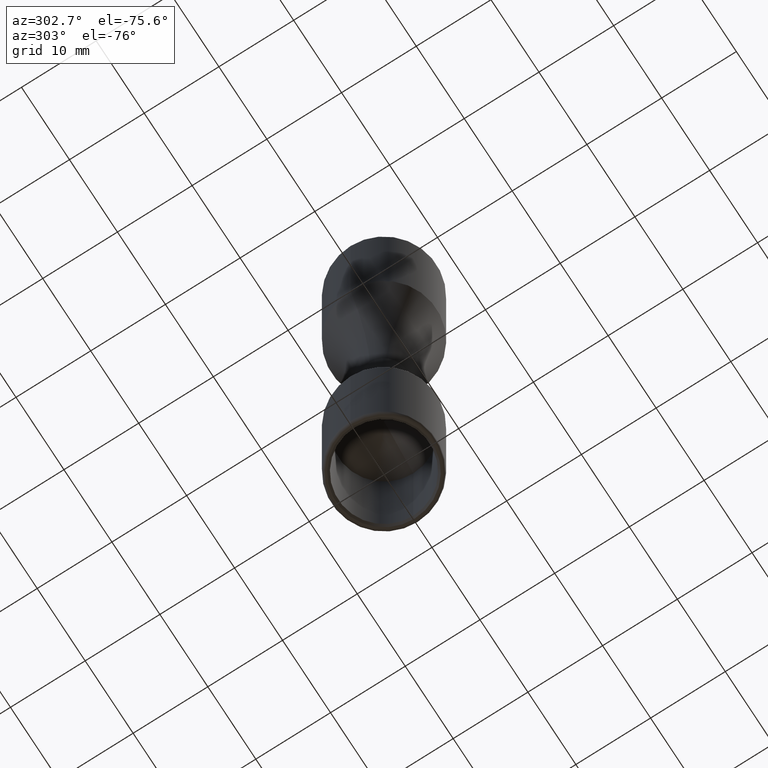
[diagram: clean part render]
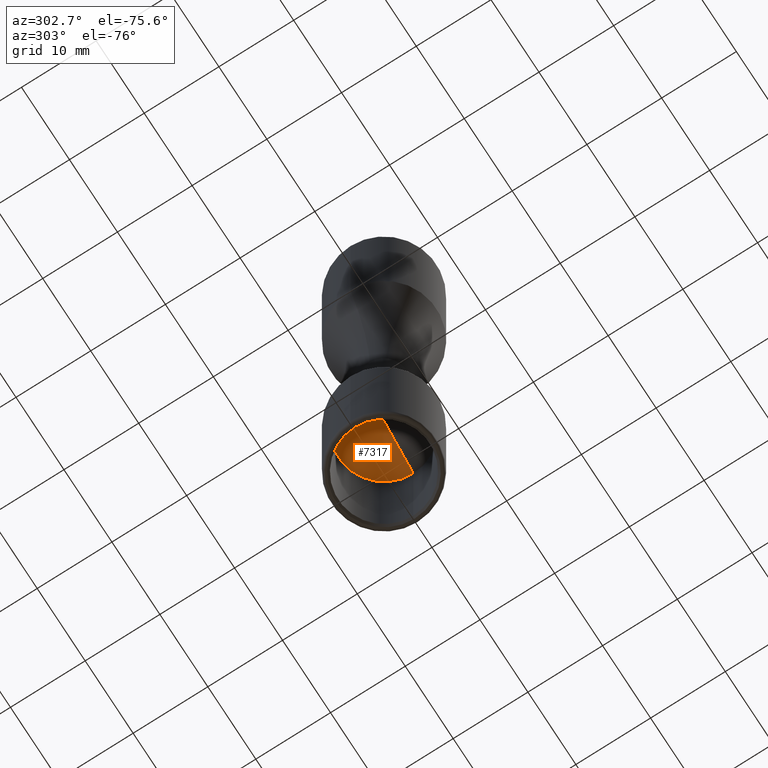
[diagram: same view with one face highlighted and labeled with its STEP entity id]
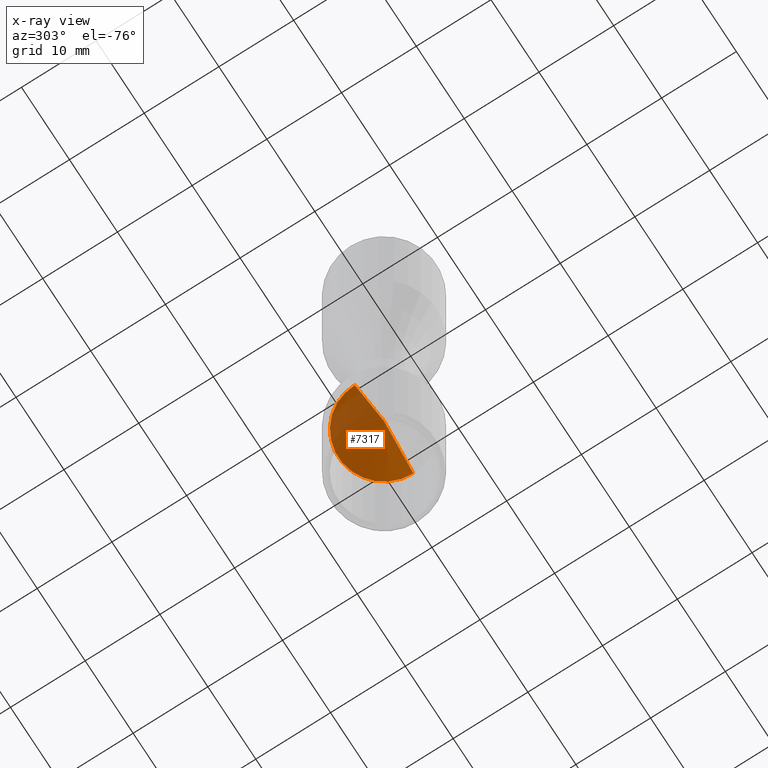
[diagram: x-ray of the same camera — body ghosted, the highlighted face saturated]
A machine part, auxiliary view. The second image highlights one B-rep face of the part: STEP entity #7317.
The next image is the same camera in x-ray: the body ghosted, the highlighted face saturated — about 28% of this face is hidden behind the body in this view.
In plain terms, the highlighted conical surface has half-angle 59 deg.
Its self-contained STEP definition (entity closure, byte-faithful):
#83 = DIRECTION ( 'NONE',  ( -1.000000000000000000, 0.000000000000000000, 0.000000000000000000 ) ) ;
#160 = DIRECTION ( 'NONE',  ( -0.000000000000000000, -0.000000000000000000, -1.000000000000000000 ) ) ;
#749 = LINE ( 'NONE', #8967, #5666 ) ;
#835 = CARTESIAN_POINT ( 'NONE',  ( 0.000000000000000000, -3.469446951953614189E-15, -16.82833891354982114 ) ) ;
#1231 = CARTESIAN_POINT ( 'NONE',  ( 6.100000000000000533, -2.722412404473728760E-15, -20.49358868961792268 ) ) ;
#1560 = CONICAL_SURFACE ( 'NONE', #4299, 1664.279482350525768, 1.029744258676656532 ) ;
#1739 = VERTEX_POINT ( 'NONE', #2013 ) ;
#2013 = CARTESIAN_POINT ( 'NONE',  ( 0.000000000000000000, -3.469446951953614189E-15, -16.82833891354982114 ) ) ;
#2141 = EDGE_LOOP ( 'NONE', ( #7638, #9035, #10404 ) ) ;
#2168 = CARTESIAN_POINT ( 'NONE',  ( 0.000000000000000000, -3.469446951953614189E-15, -20.49358868961792268 ) ) ;
#3644 = EDGE_CURVE ( 'NONE', #9902, #5489, #11397, .T. ) ;
#4299 = AXIS2_PLACEMENT_3D ( 'NONE', #7946, #160, #83 ) ;
#4623 = DIRECTION ( 'NONE',  ( -0.8571673007021134438, 0.000000000000000000, -0.5150380749100523792 ) ) ;
#4641 = CARTESIAN_POINT ( 'NONE',  ( -6.100000000000000533, -3.469446951953614189E-15, -20.49358868961792268 ) ) ;
#5191 = AXIS2_PLACEMENT_3D ( 'NONE', #2168, #8426, #7440 ) ;
#5376 = FACE_OUTER_BOUND ( 'NONE', #2141, .T. ) ;
#5466 = EDGE_CURVE ( 'NONE', #1739, #9902, #749, .T. ) ;
#5489 = VERTEX_POINT ( 'NONE', #1231 ) ;
#5666 = VECTOR ( 'NONE', #4623, 1000.000000000000227 ) ;
#6136 = VECTOR ( 'NONE', #9725, 1000.000000000000227 ) ;
#7317 = ADVANCED_FACE ( 'NONE', ( #5376 ), #1560, .F. ) ;
#7440 = DIRECTION ( 'NONE',  ( -1.000000000000000000, 0.000000000000000000, 0.000000000000000000 ) ) ;
#7638 = ORIENTED_EDGE ( 'NONE', *, *, #11376, .F. ) ;
#7946 = CARTESIAN_POINT ( 'NONE',  ( 0.000000000000000000, -3.469446951953614189E-15, -1016.828338913549715 ) ) ;
#8239 = LINE ( 'NONE', #835, #6136 ) ;
#8426 = DIRECTION ( 'NONE',  ( -0.000000000000000000, -0.000000000000000000, -1.000000000000000000 ) ) ;
#8967 = CARTESIAN_POINT ( 'NONE',  ( 0.000000000000000000, -3.469446951953614189E-15, -16.82833891354982114 ) ) ;
#9035 = ORIENTED_EDGE ( 'NONE', *, *, #5466, .T. ) ;
#9725 = DIRECTION ( 'NONE',  ( 0.8571673007021134438, 1.049727191138619928E-16, -0.5150380749100523792 ) ) ;
#9902 = VERTEX_POINT ( 'NONE', #4641 ) ;
#10404 = ORIENTED_EDGE ( 'NONE', *, *, #3644, .T. ) ;
#11376 = EDGE_CURVE ( 'NONE', #1739, #5489, #8239, .T. ) ;
#11397 = CIRCLE ( 'NONE', #5191, 6.099999999999999645 ) ;